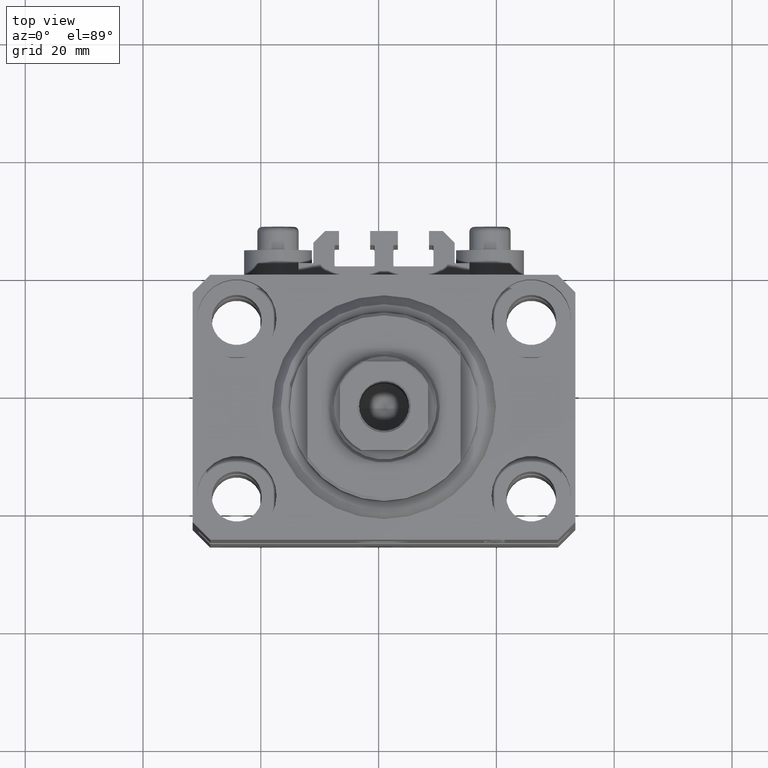
[diagram: clean part render]
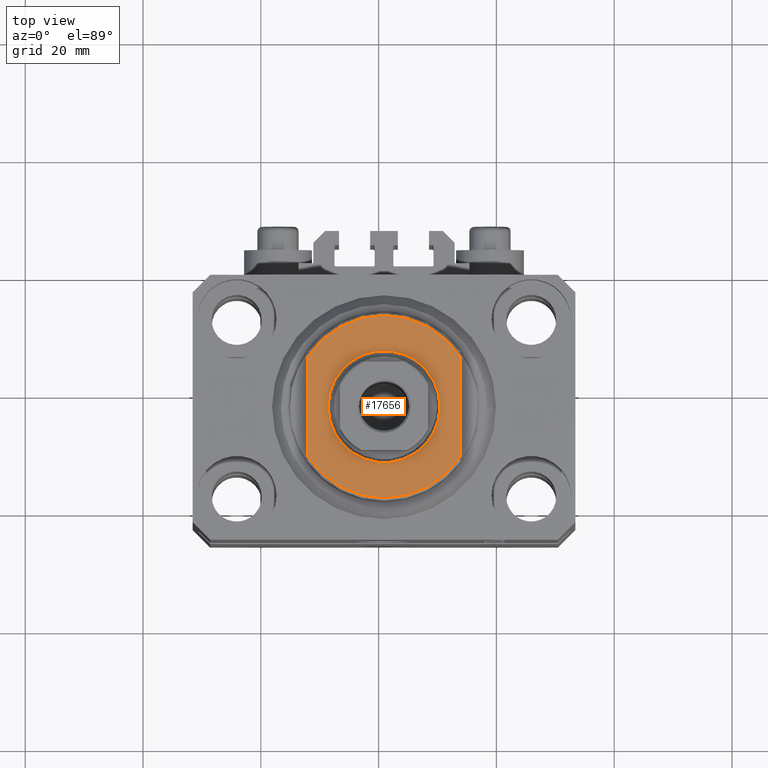
[diagram: same view with one face highlighted and labeled with its STEP entity id]
A machine part, top view. The second image highlights one B-rep face of the part: STEP entity #17656.
In plain terms, the highlighted planar face has unit normal (0, 0, 1).
Its self-contained STEP definition (entity closure, byte-faithful):
#1063 = DIRECTION ( 'NONE',  ( -0.000000000000000000, -0.000000000000000000, 1.000000000000000000 ) ) ;
#1341 = VERTEX_POINT ( 'NONE', #10192 ) ;
#1523 = CARTESIAN_POINT ( 'NONE',  ( 0.000000000000000000, 0.000000000000000000, -6.500000000000000000 ) ) ;
#1789 = ORIENTED_EDGE ( 'NONE', *, *, #10282, .T. ) ;
#4309 = EDGE_CURVE ( 'NONE', #20551, #25923, #40584, .T. ) ;
#4894 = EDGE_CURVE ( 'NONE', #42364, #15071, #29917, .T. ) ;
#6088 = ORIENTED_EDGE ( 'NONE', *, *, #7984, .T. ) ;
#6221 = EDGE_LOOP ( 'NONE', ( #6088, #36108, #8726, #27636 ) ) ;
#7015 = DIRECTION ( 'NONE',  ( 0.000000000000000000, 0.000000000000000000, -1.000000000000000000 ) ) ;
#7984 = EDGE_CURVE ( 'NONE', #20551, #42364, #39571, .T. ) ;
#8726 = ORIENTED_EDGE ( 'NONE', *, *, #25238, .T. ) ;
#10130 = AXIS2_PLACEMENT_3D ( 'NONE', #1523, #16077, #31101 ) ;
#10192 = CARTESIAN_POINT ( 'NONE',  ( 9.500000000000015987, 1.163414459189987457E-15, -6.500000000000000000 ) ) ;
#10282 = EDGE_CURVE ( 'NONE', #1341, #16231, #16751, .T. ) ;
#11472 = CARTESIAN_POINT ( 'NONE',  ( -13.00000000000000000, -43.08131845707602992, -6.500000000000000000 ) ) ;
#12304 = CARTESIAN_POINT ( 'NONE',  ( -9.500000000000015987, 0.000000000000000000, -6.500000000000000000 ) ) ;
#12482 = DIRECTION ( 'NONE',  ( 0.000000000000000000, -1.000000000000000000, -0.000000000000000000 ) ) ;
#13110 = CIRCLE ( 'NONE', #39766, 9.500000000000015987 ) ;
#15071 = VERTEX_POINT ( 'NONE', #25725 ) ;
#15374 = DIRECTION ( 'NONE',  ( -1.000000000000000000, 0.000000000000000000, 0.000000000000000000 ) ) ;
#16077 = DIRECTION ( 'NONE',  ( 0.000000000000000000, 0.000000000000000000, -1.000000000000000000 ) ) ;
#16231 = VERTEX_POINT ( 'NONE', #12304 ) ;
#16751 = CIRCLE ( 'NONE', #43411, 9.500000000000015987 ) ;
#16788 = FACE_BOUND ( 'NONE', #28834, .T. ) ;
#17656 = ADVANCED_FACE ( 'NONE', ( #16788, #41593 ), #27762, .T. ) ;
#17878 = CIRCLE ( 'NONE', #33122, 15.50000000000003730 ) ;
#18345 = DIRECTION ( 'NONE',  ( -0.000000000000000000, -0.000000000000000000, 1.000000000000000000 ) ) ;
#20551 = VERTEX_POINT ( 'NONE', #39082 ) ;
#22758 = CARTESIAN_POINT ( 'NONE',  ( 13.00000000000000000, 8.440971508067139695, -6.500000000000000000 ) ) ;
#25238 = EDGE_CURVE ( 'NONE', #15071, #25923, #17878, .T. ) ;
#25396 = CARTESIAN_POINT ( 'NONE',  ( 0.000000000000000000, 0.000000000000000000, -6.500000000000000000 ) ) ;
#25725 = CARTESIAN_POINT ( 'NONE',  ( 13.00000000000000000, -8.440971508067139695, -6.500000000000000000 ) ) ;
#25923 = VERTEX_POINT ( 'NONE', #38128 ) ;
#27090 = DIRECTION ( 'NONE',  ( 0.000000000000000000, 0.000000000000000000, -1.000000000000000000 ) ) ;
#27394 = DIRECTION ( 'NONE',  ( -1.000000000000000000, 0.000000000000000000, 0.000000000000000000 ) ) ;
#27631 = CARTESIAN_POINT ( 'NONE',  ( 0.000000000000000000, 0.000000000000000000, -6.500000000000000000 ) ) ;
#27636 = ORIENTED_EDGE ( 'NONE', *, *, #4309, .F. ) ;
#27762 = PLANE ( 'NONE',  #10130 ) ;
#28834 = EDGE_LOOP ( 'NONE', ( #39689, #1789 ) ) ;
#29917 = LINE ( 'NONE', #44473, #34121 ) ;
#30086 = DIRECTION ( 'NONE',  ( -0.000000000000000000, -1.000000000000000000, -0.000000000000000000 ) ) ;
#30652 = CARTESIAN_POINT ( 'NONE',  ( 0.000000000000000000, 0.000000000000000000, -6.500000000000000000 ) ) ;
#31101 = DIRECTION ( 'NONE',  ( -1.000000000000000000, 0.000000000000000000, -0.000000000000000000 ) ) ;
#31935 = CARTESIAN_POINT ( 'NONE',  ( 0.000000000000000000, 0.000000000000000000, -6.500000000000000000 ) ) ;
#33122 = AXIS2_PLACEMENT_3D ( 'NONE', #27631, #7015, #27394 ) ;
#34121 = VECTOR ( 'NONE', #12482, 1000.000000000000000 ) ;
#35751 = AXIS2_PLACEMENT_3D ( 'NONE', #30652, #27090, #44749 ) ;
#36108 = ORIENTED_EDGE ( 'NONE', *, *, #4894, .T. ) ;
#37199 = VECTOR ( 'NONE', #30086, 1000.000000000000000 ) ;
#38128 = CARTESIAN_POINT ( 'NONE',  ( -13.00000000000000000, -8.440971508067139695, -6.500000000000000000 ) ) ;
#39082 = CARTESIAN_POINT ( 'NONE',  ( -13.00000000000000000, 8.440971508067139695, -6.500000000000000000 ) ) ;
#39571 = CIRCLE ( 'NONE', #35751, 15.50000000000003730 ) ;
#39689 = ORIENTED_EDGE ( 'NONE', *, *, #40044, .T. ) ;
#39766 = AXIS2_PLACEMENT_3D ( 'NONE', #31935, #18345, #46483 ) ;
#40044 = EDGE_CURVE ( 'NONE', #16231, #1341, #13110, .T. ) ;
#40584 = LINE ( 'NONE', #11472, #37199 ) ;
#41593 = FACE_OUTER_BOUND ( 'NONE', #6221, .T. ) ;
#42364 = VERTEX_POINT ( 'NONE', #22758 ) ;
#43411 = AXIS2_PLACEMENT_3D ( 'NONE', #25396, #1063, #15374 ) ;
#44473 = CARTESIAN_POINT ( 'NONE',  ( 13.00000000000000000, -43.08131845707602992, -6.500000000000000000 ) ) ;
#44749 = DIRECTION ( 'NONE',  ( -1.000000000000000000, 0.000000000000000000, 0.000000000000000000 ) ) ;
#46483 = DIRECTION ( 'NONE',  ( -1.000000000000000000, 0.000000000000000000, 0.000000000000000000 ) ) ;